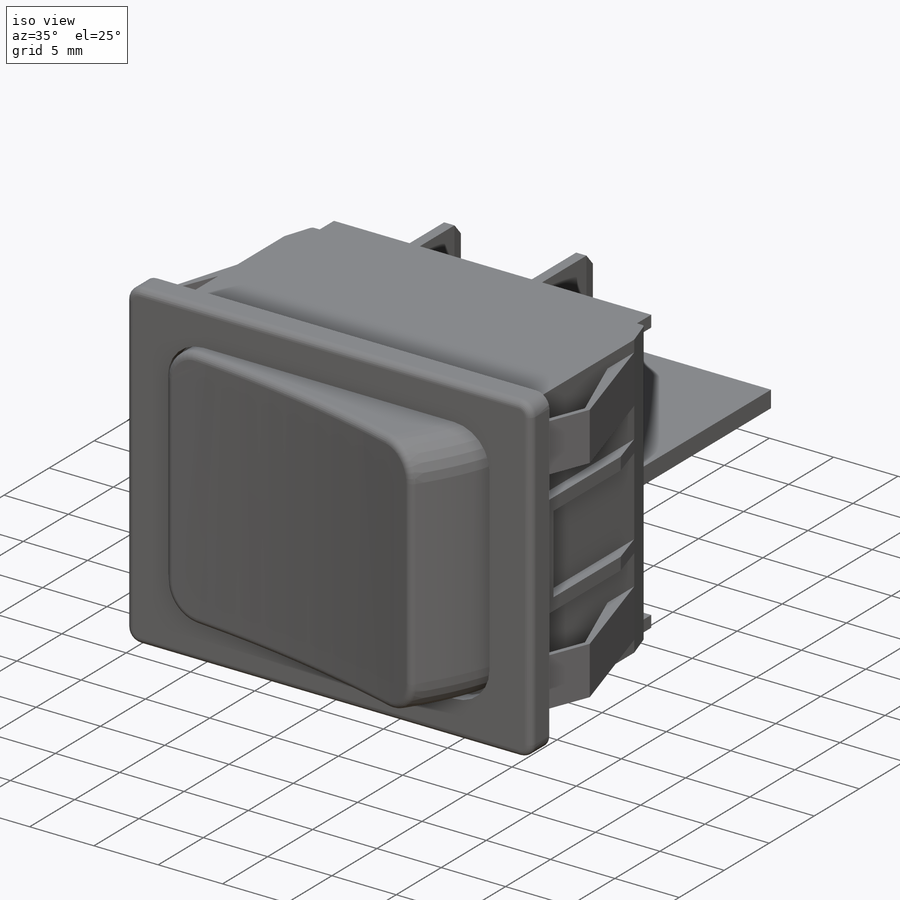
[diagram: iso view]
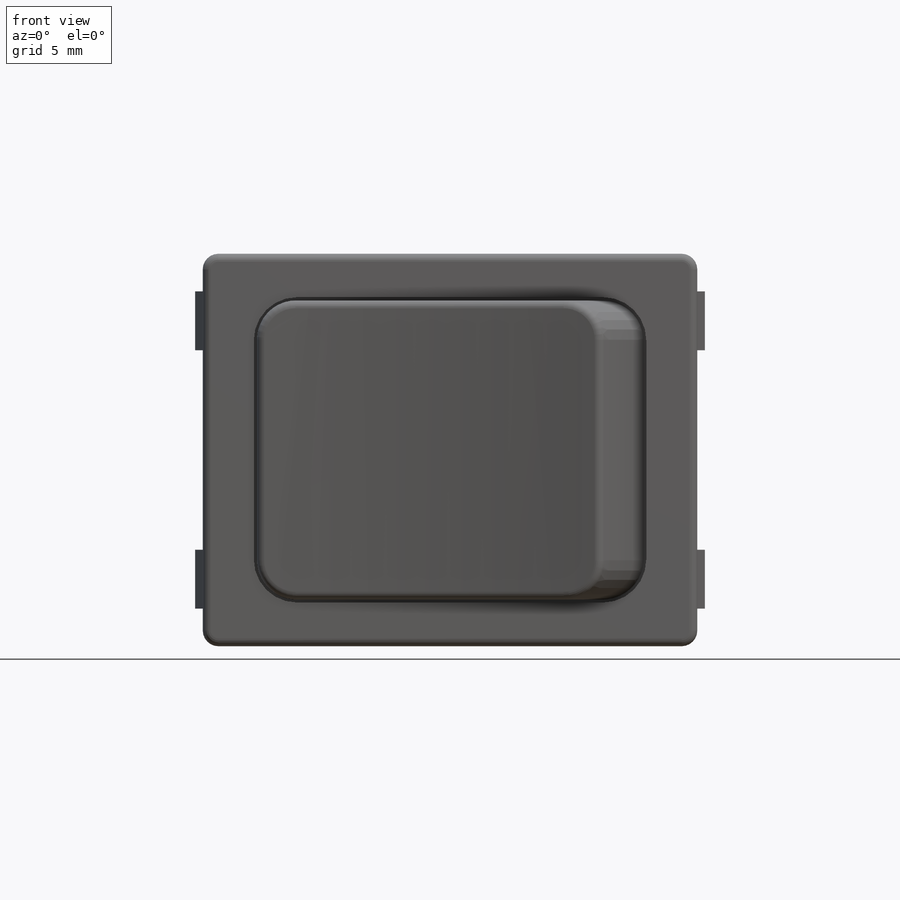
[diagram: front view]
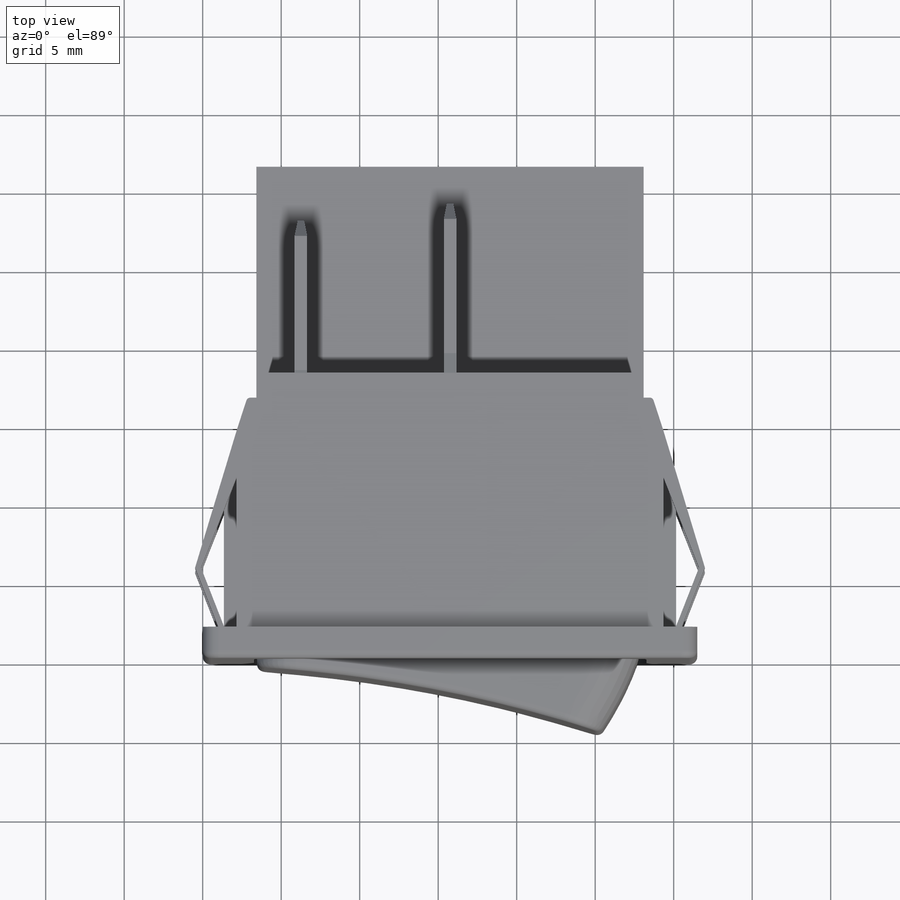
[diagram: top view]
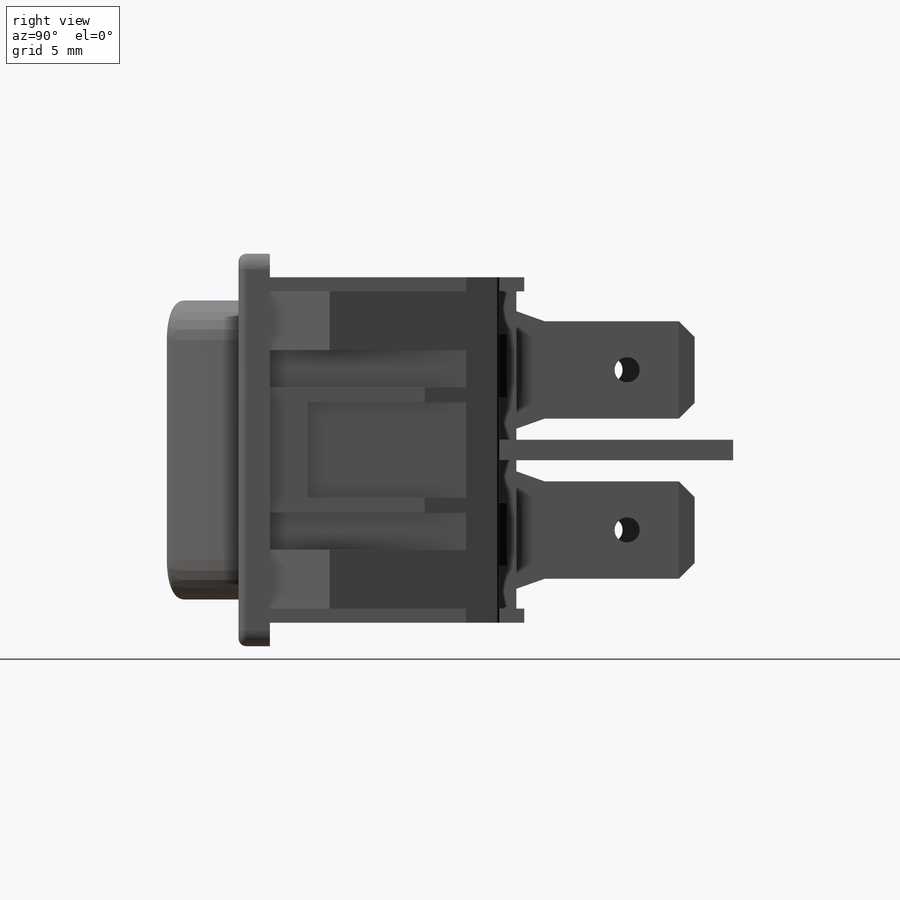
[diagram: right view]
SOLIDWORKS PART (.sldprt)
format: sldprt  version: not decoded by parser v0  size: 840,704 bytes
history: native  units: mm
features: sketch x23, cut_extrude x13, extrude x10, chamfer x7, fillet x3, material x1, plane x1, mirror x1 (+12 scaffold rows collapsed)
feature tree (71):
  scaffold x12  (default folders/planes/origin — collapsed)
  material  "Material <not specified>"
  sketch  "Sketch1"  dims[D1=31.5mm D2=25.0mm]
  extrude  "Boss-Extrude1"  Depth=2mm
  sketch  "Sketch2"  dims[D1=19.45mm D2=25.0mm]
  cut_extrude  "Cut-Extrude1"  Depth=1mm
  sketch  "Sketch3"  dims[D1=0.2mm]
  extrude  "Boss-Extrude2"  Depth=5.66mm
  fillet  "Fillet3"  Radius=0.5mm
  sketch  "Sketch5"  dims[D1=22.0mm D2=27.2mm]
  extrude  "Boss-Extrude3"  Depth=16.2mm
  sketch  "Sketch7"
  cut_extrude  "Cut-Extrude3"  [1 undecoded]
  fillet  "Fillet4"  Radius=2.5mm
  sketch  "Sketch8"  dims[D1=3.7mm D2=3.8mm]
  extrude  "Boss-Extrude6"  Depth=21.1mm
  sketch  "Sketch10"
  cut_extrude  "Cut-Extrude4"  Depth=0.9mm
  sketch  "Sketch12"  dims[D1=0.0mm]
  cut_extrude  "Cut-Extrude6"  [1 undecoded]
  fillet  "Fillet6"  Radius=0.25mm
  sketch  "Sketch13"  dims[D1=3.75mm]
  cut_extrude  "Cut-Extrude7"  [1 undecoded]
  sketch  "Sketch14"  dims[D1=0.9mm]
  cut_extrude  "Cut-Extrude8"  Depth=0.5mm
  sketch  "Sketch15"  dims[D1=9.65mm]
  cut_extrude  "Cut-Extrude9"  [1 undecoded]
  sketch  "Sketch16"  dims[D1=8.0mm]
  extrude  "Boss-Extrude7"  Depth=0.8mm
  sketch  "Sketch17"  dims[D1=0.97mm D2=2.4mm]
  cut_extrude  "Cut-Extrude10"  [1 undecoded]
  sketch  "Sketch18"
  cut_extrude  "Cut-Extrude11"  [1 undecoded]
  plane  "Plane1"  Offset=13.6mm
  sketch  "Sketch21"  dims[D1=4.0mm D2=3.7mm D3=2.74mm D4=1.38mm]
  extrude  "Boss-Extrude10"  Depth=0.5mm
  chamfer  "Chamfer1"  Distance=0.5mm Angle=45deg
  sketch  "Sketch22"  dims[D1=0.8mm D2=7.48mm D3=10.2mm]
  mirror  "Mirror1"
  sketch  "Sketch19"
  extrude  "Boss-Extrude8"  [1 undecoded]
  sketch  "Sketch20"  dims[D1=1.3mm]
  extrude  "Boss-Extrude9"  Depth=14.89mm
  extrude  "Boss-Extrude11"  Depth=11.35mm
  sketch  "Sketch23"  dims[D1=6.2mm D2=1.8mm]
  cut_extrude  "Cut-Extrude12"  [1 undecoded]
  chamfer  "Chamfer2"  Distance=1mm Angle=45deg
  chamfer  "Chamfer3"  Distance=0.2mm
  chamfer  "Chamfer4"  Distance=0.2mm
  sketch  "Sketch24"  dims[D1=9.5mm]
  extrude  "Boss-Extrude12"  Depth=11.35mm
  sketch  "Sketch25"
  cut_extrude  "Cut-Extrude13"  [1 undecoded]
  chamfer  "Chamfer5"  Distance=1mm Angle=45deg
  chamfer  "Chamfer6"  Distance=0.2mm
  chamfer  "Chamfer7"  Distance=0.2mm
  sketch  "Sketch26"  dims[D2=1.6mm D1=4.3mm]
  cut_extrude  "Cut-Extrude14"  [1 undecoded]
  sketch  "Sketch27"  dims[D1=4.3mm]
  cut_extrude  "Cut-Extrude15"  [1 undecoded]
decode coverage: 40 of 57 modeling features carry decoded parameters
note: 11 parameter values undecoded
summary: no parameter record found for 11 features
note: suppression state not decoded; provenance and decode notes live in map.json
